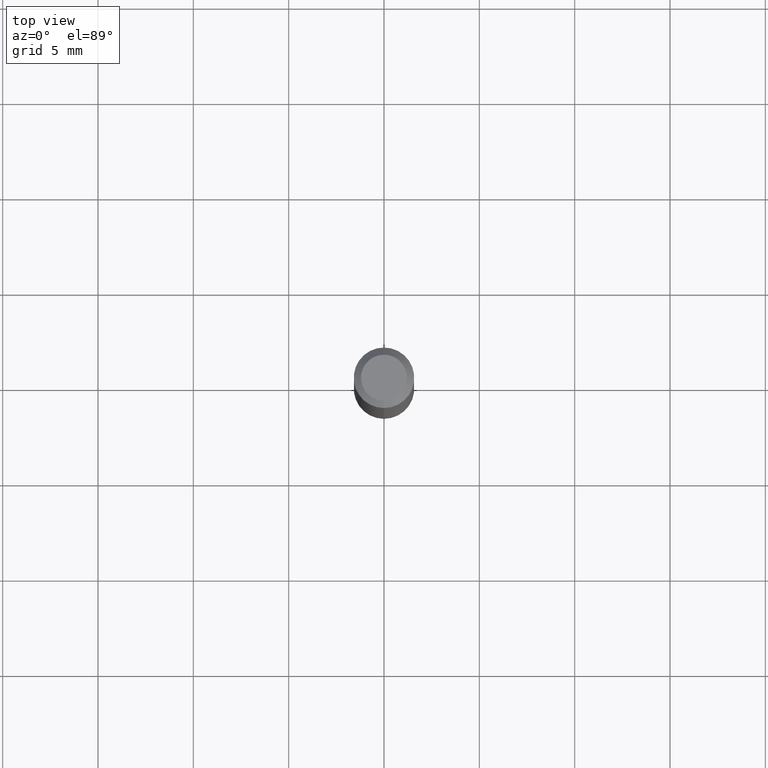
[diagram: clean part render]
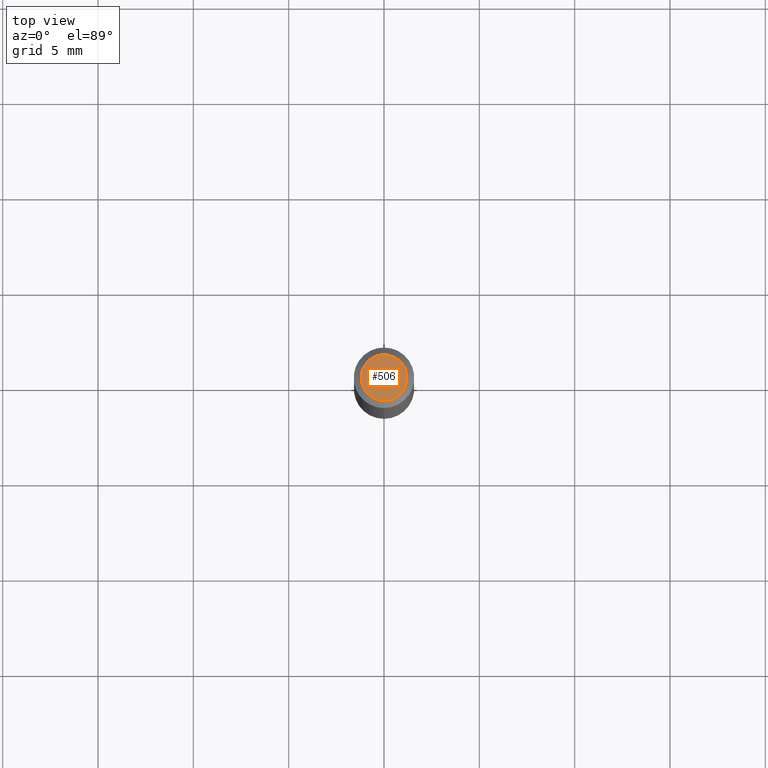
[diagram: same view with one face highlighted and labeled with its STEP entity id]
A machine part, top view. The second image highlights one B-rep face of the part: STEP entity #506.
In plain terms, the highlighted planar face has unit normal (0, -0, -1).
Its self-contained STEP definition (entity closure, byte-faithful):
#10 = DIRECTION ( 'NONE',  ( 2.445492424054012665E-29, -3.491447516710668952E-15, -1.000000000000000000 ) ) ;
#56 = CARTESIAN_POINT ( 'NONE',  ( 2.167177324553532397E-46, -3.094095002568276244E-32, -8.861926143123746076E-18 ) ) ;
#60 = EDGE_CURVE ( 'NONE', #426, #244, #409, .T. ) ;
#135 = FACE_OUTER_BOUND ( 'NONE', #219, .T. ) ;
#137 = DIRECTION ( 'NONE',  ( -6.982962677686266711E-15, -1.000000000000000000, 3.491447516710669740E-15 ) ) ;
#219 = EDGE_LOOP ( 'NONE', ( #418, #270 ) ) ;
#244 = VERTEX_POINT ( 'NONE', #493 ) ;
#267 = DIRECTION ( 'NONE',  ( -2.445492424054012945E-29, 3.491447516710668952E-15, 1.000000000000000000 ) ) ;
#270 = ORIENTED_EDGE ( 'NONE', *, *, #60, .T. ) ;
#271 = DIRECTION ( 'NONE',  ( -6.982962677686266711E-15, -1.000000000000000000, 3.491447516710669740E-15 ) ) ;
#295 = CARTESIAN_POINT ( 'NONE',  ( -3.773273898774340269E-16, -0.04749999999999999362, 1.569818309006330338E-16 ) ) ;
#299 = DIRECTION ( 'NONE',  ( 6.982962677686265922E-15, 1.000000000000000000, -3.491447516710668952E-15 ) ) ;
#350 = CARTESIAN_POINT ( 'NONE',  ( 2.167177324553532397E-46, -3.094095002568276244E-32, -8.861926143123746076E-18 ) ) ;
#353 = DIRECTION ( 'NONE',  ( -2.445492424054012945E-29, 3.491447516710668952E-15, 1.000000000000000000 ) ) ;
#356 = AXIS2_PLACEMENT_3D ( 'NONE', #452, #10, #299 ) ;
#409 = CIRCLE ( 'NONE', #439, 0.04749999999999999362 ) ;
#418 = ORIENTED_EDGE ( 'NONE', *, *, #464, .T. ) ;
#422 = CIRCLE ( 'NONE', #474, 0.04749999999999999362 ) ;
#426 = VERTEX_POINT ( 'NONE', #295 ) ;
#439 = AXIS2_PLACEMENT_3D ( 'NONE', #350, #353, #271 ) ;
#452 = CARTESIAN_POINT ( 'NONE',  ( 3.316907271900976096E-16, 0.04749999999999999362, -1.702747201153186375E-16 ) ) ;
#464 = EDGE_CURVE ( 'NONE', #244, #426, #422, .T. ) ;
#474 = AXIS2_PLACEMENT_3D ( 'NONE', #56, #267, #137 ) ;
#490 = PLANE ( 'NONE',  #356 ) ;
#493 = CARTESIAN_POINT ( 'NONE',  ( 3.840629472727447874E-16, 0.04749999999999999362, -1.747056831868805136E-16 ) ) ;
#506 = ADVANCED_FACE ( 'NONE', ( #135 ), #490, .F. ) ;